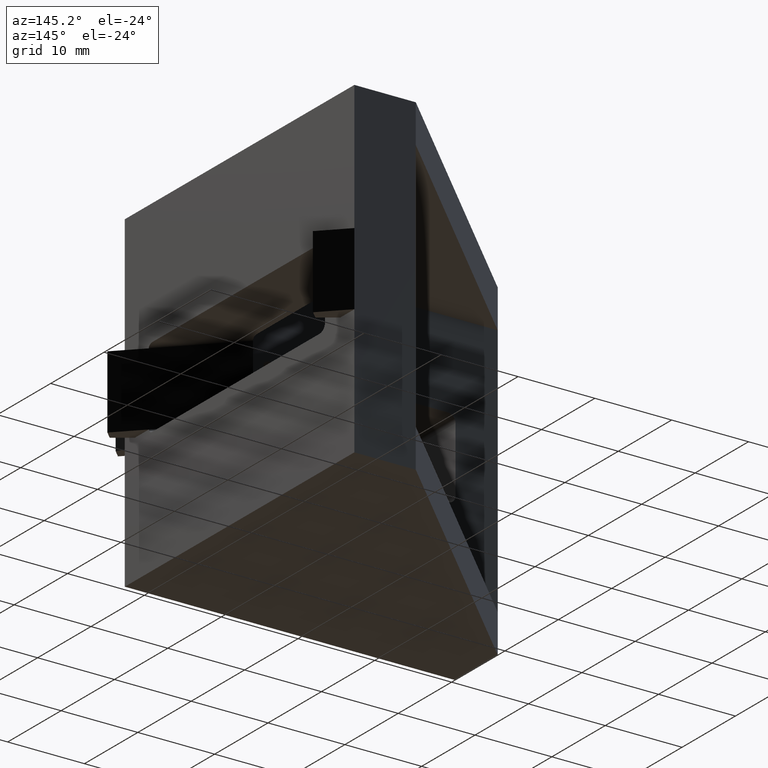
[diagram: clean part render]
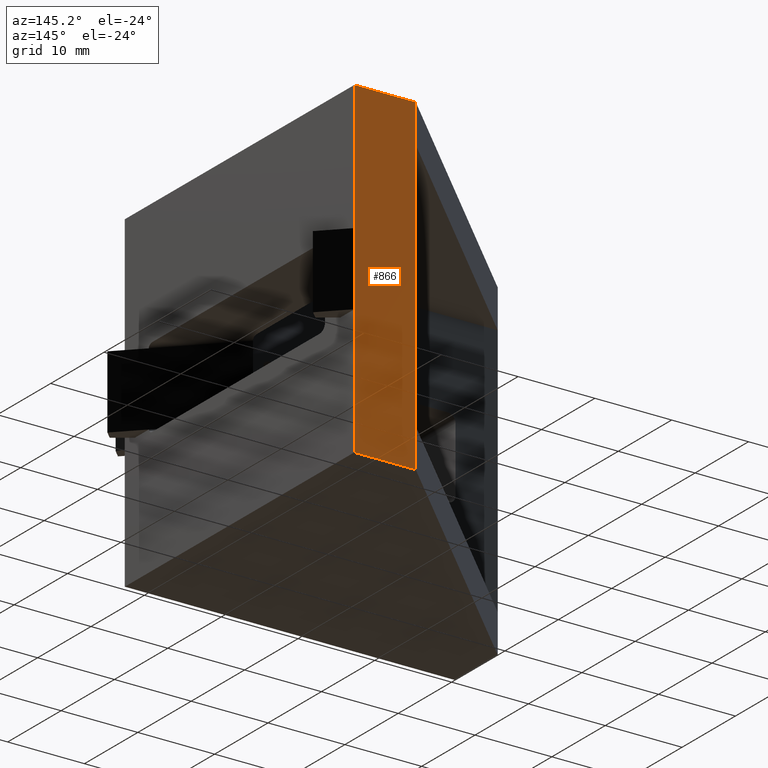
[diagram: same view with one face highlighted and labeled with its STEP entity id]
A machine part, auxiliary view. The second image highlights one B-rep face of the part: STEP entity #866.
In plain terms, the highlighted planar face has unit normal (-0, 1, 0).
Its self-contained STEP definition (entity closure, byte-faithful):
#64=PLANE('',#930);
#110=FACE_OUTER_BOUND('',#160,.T.);
#160=EDGE_LOOP('',(#805,#806,#807,#808,#809,#810,#811,#812));
#215=LINE('',#1292,#319);
#230=LINE('',#1325,#334);
#233=LINE('',#1329,#337);
#253=LINE('',#1382,#357);
#256=LINE('',#1386,#360);
#258=LINE('',#1390,#362);
#262=LINE('',#1398,#366);
#264=LINE('',#1402,#368);
#319=VECTOR('',#1049,9.5);
#334=VECTOR('',#1078,16.75);
#337=VECTOR('',#1081,16.75);
#357=VECTOR('',#1135,8.);
#360=VECTOR('',#1140,5.);
#362=VECTOR('',#1144,33.);
#366=VECTOR('',#1152,8.);
#368=VECTOR('',#1158,5.);
#417=VERTEX_POINT('',#1282);
#421=VERTEX_POINT('',#1291);
#432=VERTEX_POINT('',#1324);
#433=VERTEX_POINT('',#1327);
#447=VERTEX_POINT('',#1375);
#448=VERTEX_POINT('',#1379);
#450=VERTEX_POINT('',#1388);
#452=VERTEX_POINT('',#1396);
#515=EDGE_CURVE('',#417,#421,#215,.T.);
#532=EDGE_CURVE('',#421,#432,#230,.T.);
#535=EDGE_CURVE('',#433,#417,#233,.T.);
#561=EDGE_CURVE('',#448,#433,#253,.T.);
#564=EDGE_CURVE('',#447,#448,#256,.T.);
#566=EDGE_CURVE('',#450,#447,#258,.T.);
#570=EDGE_CURVE('',#432,#452,#262,.T.);
#572=EDGE_CURVE('',#452,#450,#264,.T.);
#805=ORIENTED_EDGE('',*,*,#535,.F.);
#806=ORIENTED_EDGE('',*,*,#561,.F.);
#807=ORIENTED_EDGE('',*,*,#564,.F.);
#808=ORIENTED_EDGE('',*,*,#566,.F.);
#809=ORIENTED_EDGE('',*,*,#572,.F.);
#810=ORIENTED_EDGE('',*,*,#570,.F.);
#811=ORIENTED_EDGE('',*,*,#532,.F.);
#812=ORIENTED_EDGE('',*,*,#515,.F.);
#866=ADVANCED_FACE('',(#110),#64,.T.);
#930=AXIS2_PLACEMENT_3D('',#1403,#1159,#1160);
#1049=DIRECTION('',(0.,0.,1.));
#1078=DIRECTION('',(0.,0.,1.));
#1081=DIRECTION('',(0.,0.,1.));
#1135=DIRECTION('',(1.,5.55111512312578E-16,0.));
#1140=DIRECTION('',(0.,0.,-1.));
#1144=DIRECTION('',(0.,0.,-1.));
#1152=DIRECTION('',(-1.,-5.55111512312578E-16,0.));
#1158=DIRECTION('',(0.,0.,-1.));
#1159=DIRECTION('center_axis',(-5.55111512312578E-16,1.,0.));
#1160=DIRECTION('ref_axis',(-1.,-7.105427357601E-16,0.));
#1282=CARTESIAN_POINT('',(21.5,21.5,-4.75));
#1291=CARTESIAN_POINT('',(21.5,21.5,4.75));
#1292=CARTESIAN_POINT('',(21.5,21.5,0.));
#1324=CARTESIAN_POINT('',(21.5,21.5,21.5));
#1325=CARTESIAN_POINT('',(21.5,21.5,0.));
#1327=CARTESIAN_POINT('',(21.5,21.5,-21.5));
#1329=CARTESIAN_POINT('',(21.5,21.5,0.));
#1375=CARTESIAN_POINT('',(13.5,21.5,-16.5));
#1379=CARTESIAN_POINT('',(13.5,21.5,-21.5));
#1382=CARTESIAN_POINT('',(13.5,21.5,-21.5));
#1386=CARTESIAN_POINT('',(13.5,21.5,0.));
#1388=CARTESIAN_POINT('',(13.5,21.5,16.5));
#1390=CARTESIAN_POINT('',(13.5,21.5,0.));
#1396=CARTESIAN_POINT('',(13.5,21.5,21.5));
#1398=CARTESIAN_POINT('',(13.5,21.5,21.5));
#1402=CARTESIAN_POINT('',(13.5,21.5,0.));
#1403=CARTESIAN_POINT('Origin',(21.5,21.5,0.));